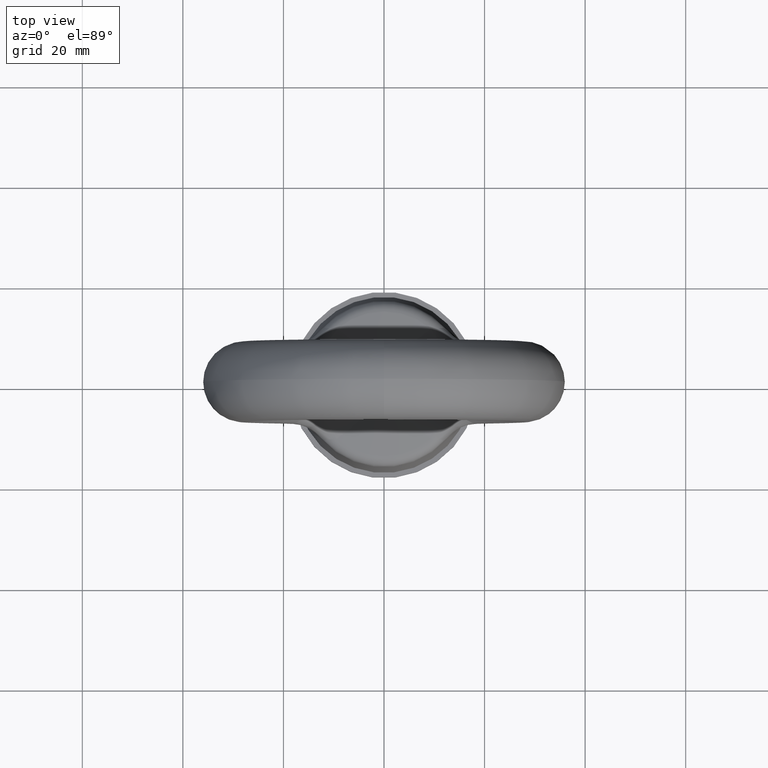
[diagram: clean part render]
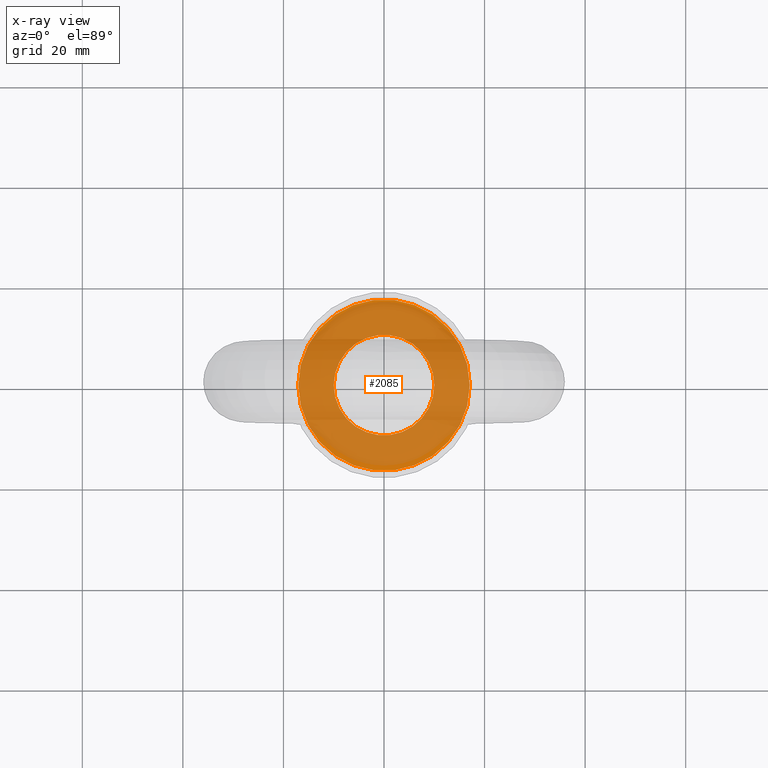
[diagram: x-ray — body ghosted, one internal face saturated and labeled with its STEP entity id]
A machine part, top view, then the same camera in x-ray: the body is ghosted and one INTERNAL B-rep face — a face not visible from any outside direction — is saturated and labeled: STEP entity #2085.
In plain terms, the highlighted planar face has unit normal (0, 0, 1).
Its self-contained STEP definition (entity closure, byte-faithful):
#2052 = EDGE_CURVE ( 'NONE', #2076, #2068, #9054, .T. ) ;
#2053 = EDGE_CURVE ( 'NONE', #2061, #2058, #8577, .T. ) ;
#2058 = VERTEX_POINT ( 'NONE', #8582 ) ;
#2060 = EDGE_CURVE ( 'NONE', #2058, #2061, #8581, .T. ) ;
#2061 = VERTEX_POINT ( 'NONE', #8481 ) ;
#2064 = ORIENTED_EDGE ( 'NONE', *, *, #2084, .T. ) ;
#2065 = EDGE_LOOP ( 'NONE', ( #2066, #2067 ) ) ;
#2066 = ORIENTED_EDGE ( 'NONE', *, *, #2053, .F. ) ;
#2067 = ORIENTED_EDGE ( 'NONE', *, *, #2060, .F. ) ;
#2068 = VERTEX_POINT ( 'NONE', #8476 ) ;
#2076 = VERTEX_POINT ( 'NONE', #9426 ) ;
#2084 = EDGE_CURVE ( 'NONE', #2068, #2076, #10510, .T. ) ;
#2085 = ADVANCED_FACE ( 'NONE', ( #10505, #10504 ), #10574, .T. ) ;
#2086 = EDGE_LOOP ( 'NONE', ( #2087, #2064 ) ) ;
#2087 = ORIENTED_EDGE ( 'NONE', *, *, #2052, .T. ) ;
#8435 = DIRECTION ( 'NONE',  ( 1.000000000000000000, 0.0000000000000000000, 0.0000000000000000000 ) ) ;
#8436 = DIRECTION ( 'NONE',  ( 0.0000000000000000000, 0.0000000000000000000, -1.000000000000000000 ) ) ;
#8437 = CARTESIAN_POINT ( 'NONE',  ( 0.0000000000000000000, 0.0000000000000000000, -38.20000100000029900 ) ) ;
#8476 = CARTESIAN_POINT ( 'NONE',  ( -10.00000000000000000, 1.224606353822377300E-015, -38.20000100000029900 ) ) ;
#8481 = CARTESIAN_POINT ( 'NONE',  ( 17.04999900000000000, 0.0000000000000000000, -38.20000100000029900 ) ) ;
#8482 = DIRECTION ( 'NONE',  ( 1.000000000000000000, 0.0000000000000000000, 0.0000000000000000000 ) ) ;
#8576 = AXIS2_PLACEMENT_3D ( 'NONE', #8437, #8436, #8435 ) ;
#8577 = CIRCLE ( 'NONE', #8576, 17.04999900000000000 ) ;
#8578 = DIRECTION ( 'NONE',  ( 0.0000000000000000000, 0.0000000000000000000, -1.000000000000000000 ) ) ;
#8579 = CARTESIAN_POINT ( 'NONE',  ( 0.0000000000000000000, 0.0000000000000000000, -38.20000100000029900 ) ) ;
#8580 = AXIS2_PLACEMENT_3D ( 'NONE', #8579, #8578, #8482 ) ;
#8581 = CIRCLE ( 'NONE', #8580, 17.04999900000000000 ) ;
#8582 = CARTESIAN_POINT ( 'NONE',  ( -17.04999900000000000, 2.087953710806517600E-015, -38.20000100000029900 ) ) ;
#9050 = DIRECTION ( 'NONE',  ( 1.000000000000000000, 0.0000000000000000000, 0.0000000000000000000 ) ) ;
#9051 = DIRECTION ( 'NONE',  ( 0.0000000000000000000, 0.0000000000000000000, -1.000000000000000000 ) ) ;
#9052 = CARTESIAN_POINT ( 'NONE',  ( 0.0000000000000000000, 0.0000000000000000000, -38.20000100000029900 ) ) ;
#9053 = AXIS2_PLACEMENT_3D ( 'NONE', #9052, #9051, #9050 ) ;
#9054 = CIRCLE ( 'NONE', #9053, 10.00000000000000000 ) ;
#9426 = CARTESIAN_POINT ( 'NONE',  ( 10.00000000000000000, 0.0000000000000000000, -38.20000100000029900 ) ) ;
#10504 = FACE_OUTER_BOUND ( 'NONE', #2065, .T. ) ;
#10505 = FACE_BOUND ( 'NONE', #2086, .T. ) ;
#10506 = DIRECTION ( 'NONE',  ( 1.000000000000000000, 0.0000000000000000000, 0.0000000000000000000 ) ) ;
#10507 = DIRECTION ( 'NONE',  ( 0.0000000000000000000, 0.0000000000000000000, -1.000000000000000000 ) ) ;
#10508 = CARTESIAN_POINT ( 'NONE',  ( 0.0000000000000000000, 0.0000000000000000000, -38.20000100000029900 ) ) ;
#10509 = AXIS2_PLACEMENT_3D ( 'NONE', #10508, #10507, #10506 ) ;
#10510 = CIRCLE ( 'NONE', #10509, 10.00000000000000000 ) ;
#10570 = DIRECTION ( 'NONE',  ( 1.000000000000000000, 0.0000000000000000000, 0.0000000000000000000 ) ) ;
#10571 = DIRECTION ( 'NONE',  ( 0.0000000000000000000, 0.0000000000000000000, 1.000000000000000000 ) ) ;
#10572 = CARTESIAN_POINT ( 'NONE',  ( 0.0000000000000000000, 0.0000000000000000000, -38.20000100000019900 ) ) ;
#10573 = AXIS2_PLACEMENT_3D ( 'NONE', #10572, #10571, #10570 ) ;
#10574 = PLANE ( 'NONE',  #10573 ) ;